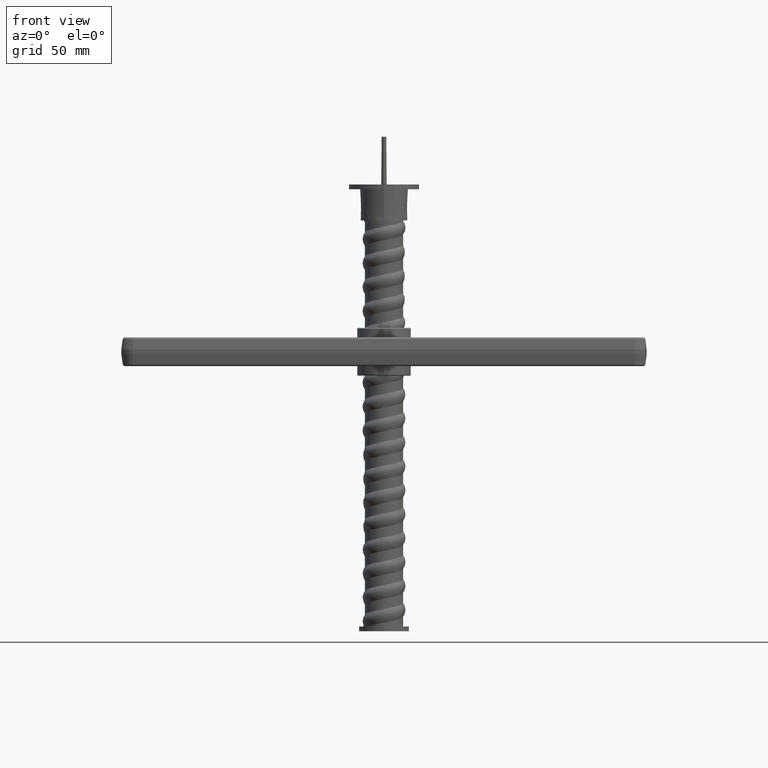
[diagram: clean part render]
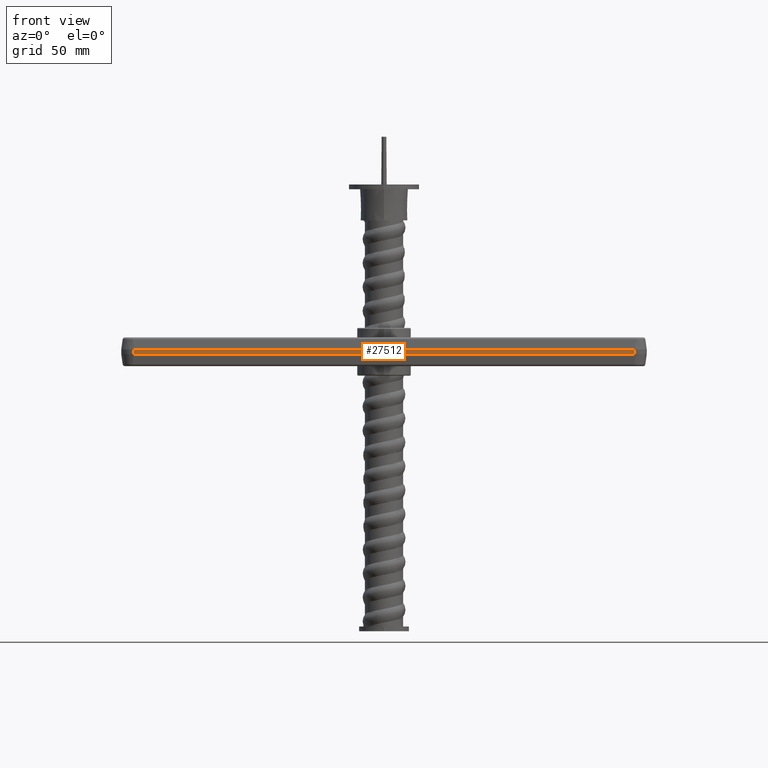
[diagram: same view with one face highlighted and labeled with its STEP entity id]
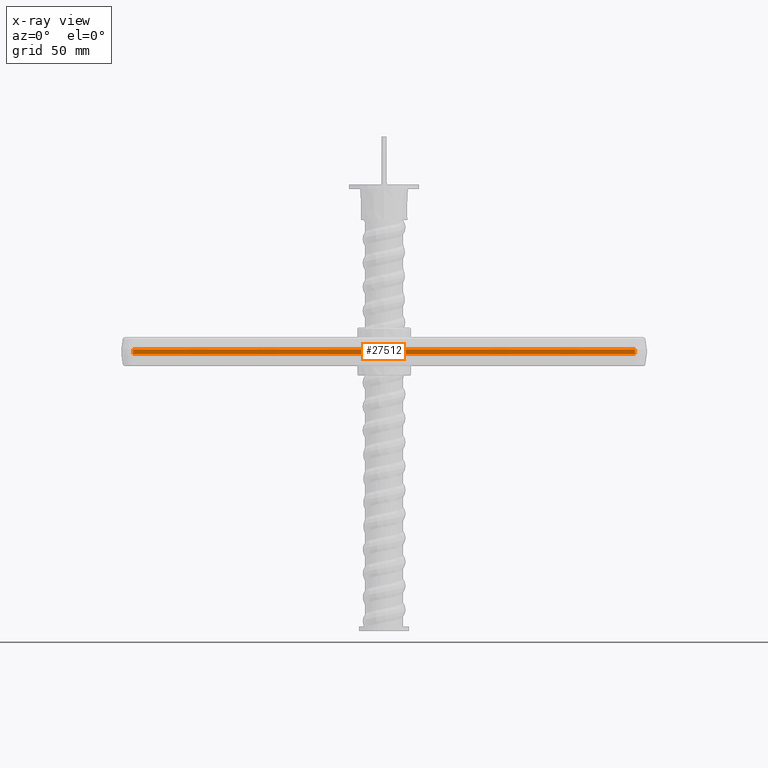
[diagram: x-ray of the same camera — body ghosted, the highlighted face saturated]
A machine part, front view. The second image highlights one B-rep face of the part: STEP entity #27512.
The next image is the same camera in x-ray: the body ghosted, the highlighted face saturated — about 0% of this face is hidden behind the body in this view.
In plain terms, the highlighted planar face has unit normal (0, -1, 0).
Its self-contained STEP definition (entity closure, byte-faithful):
#2068 = VERTEX_POINT ( 'NONE', #35009 ) ;
#2157 = DIRECTION ( 'NONE',  ( 0.0000000000000000000, 0.0000000000000000000, 1.000000000000000000 ) ) ;
#2213 = AXIS2_PLACEMENT_3D ( 'NONE', #30989, #2157, #24982 ) ;
#3057 = EDGE_CURVE ( 'NONE', #2068, #28049, #6733, .T. ) ;
#3125 = CARTESIAN_POINT ( 'NONE',  ( 105.0000000000000142, -1.000000000000000888, 25.00000000000000000 ) ) ;
#6733 = LINE ( 'NONE', #12904, #39364 ) ;
#6918 = CARTESIAN_POINT ( 'NONE',  ( -105.0000000000000000, -1.000000000000000888, 25.00000000000000000 ) ) ;
#6923 = VECTOR ( 'NONE', #19916, 1000.000000000000000 ) ;
#11069 = CARTESIAN_POINT ( 'NONE',  ( 105.0000000000000000, 1.000000000000000888, 25.00000000000000000 ) ) ;
#12045 = CARTESIAN_POINT ( 'NONE',  ( -104.9999999999999858, 1.000000000000000888, 25.00000000000003553 ) ) ;
#12279 = ORIENTED_EDGE ( 'NONE', *, *, #24895, .F. ) ;
#12904 = CARTESIAN_POINT ( 'NONE',  ( -104.9999999999999858, -1.000000000000000888, 25.00000000000003553 ) ) ;
#13074 = LINE ( 'NONE', #12045, #38041 ) ;
#15256 = EDGE_CURVE ( 'NONE', #28049, #20573, #31470, .T. ) ;
#19916 = DIRECTION ( 'NONE',  ( 0.0000000000000000000, -1.000000000000000000, 0.0000000000000000000 ) ) ;
#20573 = VERTEX_POINT ( 'NONE', #11069 ) ;
#21704 = PLANE ( 'NONE',  #2213 ) ;
#23310 = FACE_OUTER_BOUND ( 'NONE', #30728, .T. ) ;
#23542 = ORIENTED_EDGE ( 'NONE', *, *, #15256, .T. ) ;
#24895 = EDGE_CURVE ( 'NONE', #28456, #20573, #13074, .T. ) ;
#24982 = DIRECTION ( 'NONE',  ( 1.000000000000000000, 0.0000000000000000000, 0.0000000000000000000 ) ) ;
#27512 = ADVANCED_FACE ( 'NONE', ( #23310 ), #21704, .T. ) ;
#28049 = VERTEX_POINT ( 'NONE', #3125 ) ;
#28456 = VERTEX_POINT ( 'NONE', #39881 ) ;
#30061 = EDGE_CURVE ( 'NONE', #28456, #2068, #31948, .T. ) ;
#30728 = EDGE_LOOP ( 'NONE', ( #37968, #23542, #12279, #39958 ) ) ;
#30989 = CARTESIAN_POINT ( 'NONE',  ( 110.0000000000000000, 1.000000000000000888, 25.00000000000000000 ) ) ;
#31470 = LINE ( 'NONE', #37406, #39064 ) ;
#31588 = DIRECTION ( 'NONE',  ( 1.000000000000000000, 0.0000000000000000000, -1.486905836551548832E-16 ) ) ;
#31948 = LINE ( 'NONE', #6918, #6923 ) ;
#35009 = CARTESIAN_POINT ( 'NONE',  ( -105.0000000000000000, -1.000000000000000888, 25.00000000000000000 ) ) ;
#35701 = DIRECTION ( 'NONE',  ( 1.000000000000000000, 0.0000000000000000000, -1.486905836551548832E-16 ) ) ;
#37406 = CARTESIAN_POINT ( 'NONE',  ( 105.0000000000000000, 1.000000000000000888, 25.00000000000000000 ) ) ;
#37968 = ORIENTED_EDGE ( 'NONE', *, *, #3057, .T. ) ;
#38041 = VECTOR ( 'NONE', #31588, 1000.000000000000000 ) ;
#39064 = VECTOR ( 'NONE', #40667, 1000.000000000000000 ) ;
#39364 = VECTOR ( 'NONE', #35701, 1000.000000000000000 ) ;
#39881 = CARTESIAN_POINT ( 'NONE',  ( -104.9999999999999716, 1.000000000000000888, 25.00000000000000000 ) ) ;
#39958 = ORIENTED_EDGE ( 'NONE', *, *, #30061, .T. ) ;
#40667 = DIRECTION ( 'NONE',  ( 0.0000000000000000000, 1.000000000000000000, 0.0000000000000000000 ) ) ;